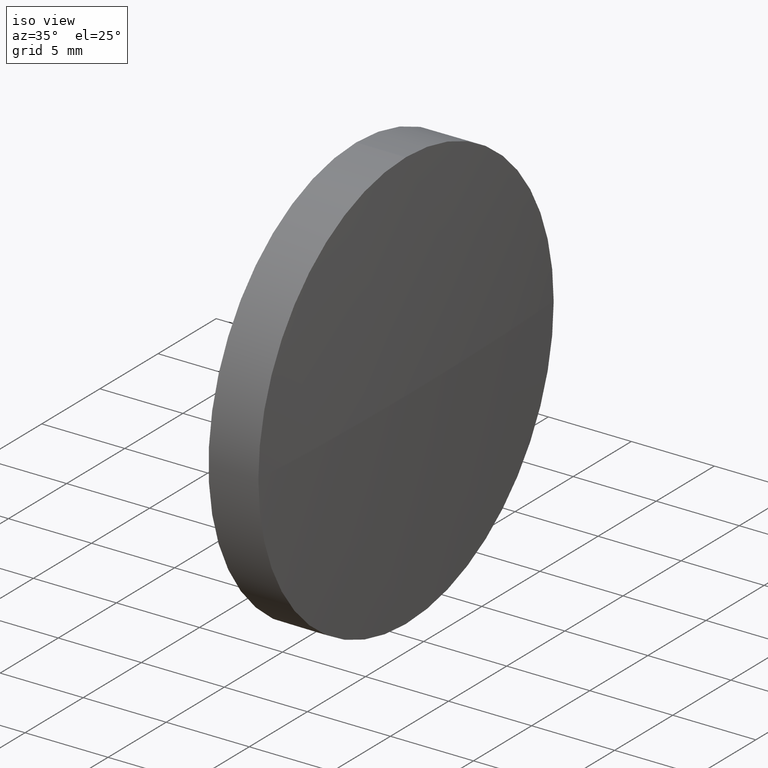
[diagram: clean part render]
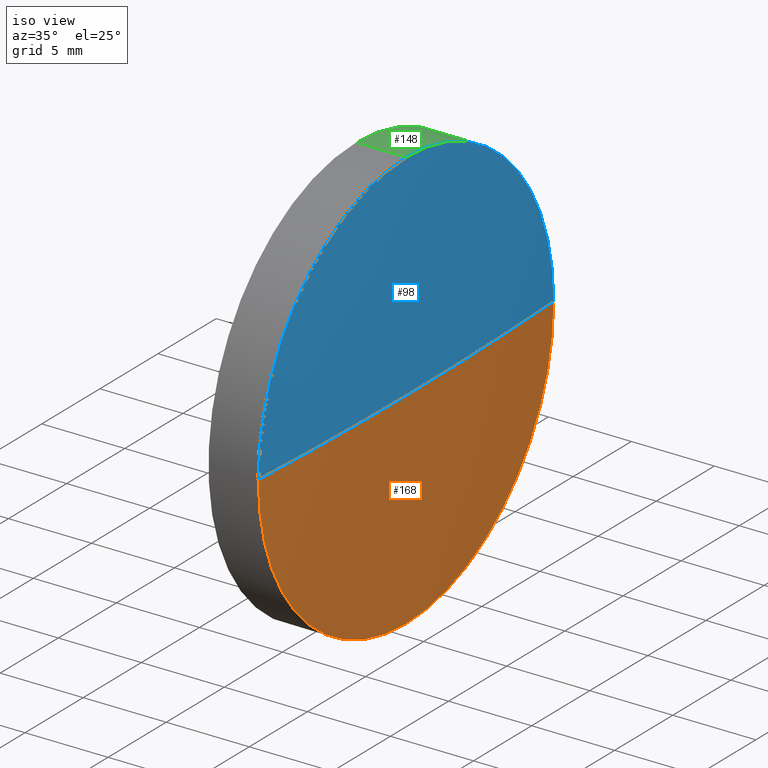
[diagram: same view with three faces highlighted in distinct colors, each labeled with its STEP entity id]
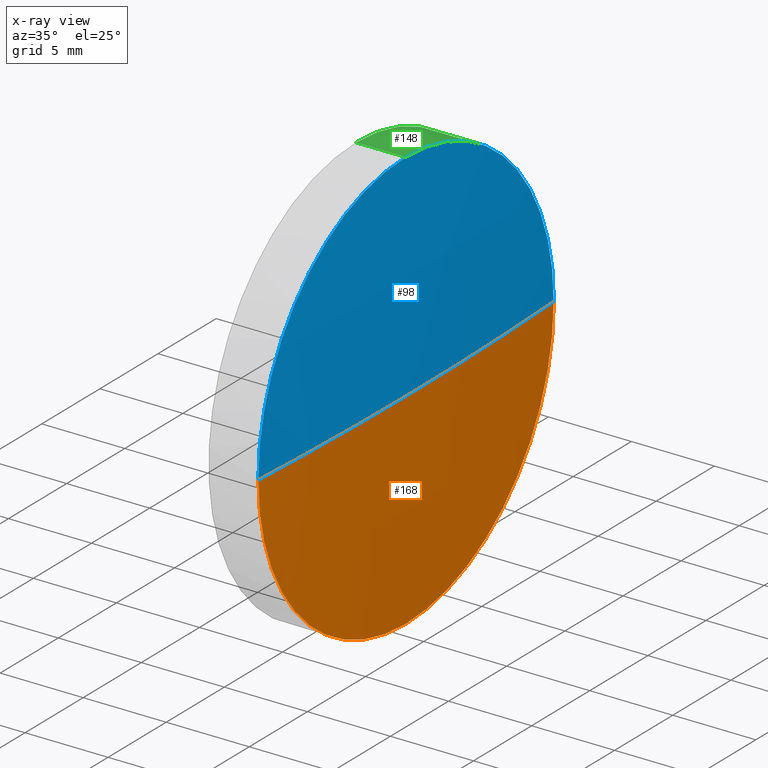
[diagram: x-ray of the same camera — body ghosted, the three highlighted faces saturated]
A machine part, iso view with three faces highlighted in distinct colors.
The next image is the same camera in x-ray (body ghosted, the three faces saturated) — at least one of them is partly hidden behind the body in this view.
Their STEP definitions:

[orange] entity #168 — the highlighted spherical surface has radius 229.5 mm.
#3 = CARTESIAN_POINT ( 'NONE',  ( 118.7739426674340100, 65.23355492641219700, 0.0000000000000000000 ) ) ;
#5 = DIRECTION ( 'NONE',  ( -1.000000000000000000, -0.0000000000000000000, -0.0000000000000000000 ) ) ;
#6 = VERTEX_POINT ( 'NONE', #71 ) ;
#7 = AXIS2_PLACEMENT_3D ( 'NONE', #174, #162, #31 ) ;
#8 = EDGE_CURVE ( 'NONE', #111, #83, #105, .T. ) ;
#10 = FACE_OUTER_BOUND ( 'NONE', #96, .T. ) ;
#14 = DIRECTION ( 'NONE',  ( 0.0000000000000000000, 0.0000000000000000000, 1.000000000000000000 ) ) ;
#18 = CIRCLE ( 'NONE', #7, 229.5000000000000000 ) ;
#31 = DIRECTION ( 'NONE',  ( 0.0000000000000000000, -1.000000000000000000, -1.224646799147353200E-016 ) ) ;
#37 = AXIS2_PLACEMENT_3D ( 'NONE', #172, #128, #14 ) ;
#40 = AXIS2_PLACEMENT_3D ( 'NONE', #51, #175, #48 ) ;
#41 = CIRCLE ( 'NONE', #79, 12.70000000000000300 ) ;
#44 = CARTESIAN_POINT ( 'NONE',  ( 118.7739426674340300, 77.93355492641221400, 1.555301434917110000E-015 ) ) ;
#48 = DIRECTION ( 'NONE',  ( -1.000000000000000000, 0.0000000000000000000, 0.0000000000000000000 ) ) ;
#50 = VERTEX_POINT ( 'NONE', #44 ) ;
#51 = CARTESIAN_POINT ( 'NONE',  ( -110.3743935691618700, 65.23355492641245200, 0.0000000000000000000 ) ) ;
#52 = SPHERICAL_SURFACE ( 'NONE', #95, 229.5000000000000000 ) ;
#71 = CARTESIAN_POINT ( 'NONE',  ( 119.1256064308381300, 65.23355492641243800, 0.0000000000000000000 ) ) ;
#75 = DIRECTION ( 'NONE',  ( 0.0000000000000000000, 0.0000000000000000000, 1.000000000000000000 ) ) ;
#77 = DIRECTION ( 'NONE',  ( 0.0000000000000000000, -1.000000000000000000, 0.0000000000000000000 ) ) ;
#78 = DIRECTION ( 'NONE',  ( 0.0000000000000000000, 0.0000000000000000000, 1.000000000000000000 ) ) ;
#79 = AXIS2_PLACEMENT_3D ( 'NONE', #3, #5, #78 ) ;
#83 = VERTEX_POINT ( 'NONE', #117 ) ;
#95 = AXIS2_PLACEMENT_3D ( 'NONE', #143, #75, #77 ) ;
#96 = EDGE_LOOP ( 'NONE', ( #109, #123, #152, #127 ) ) ;
#100 = EDGE_CURVE ( 'NONE', #50, #111, #41, .T. ) ;
#105 = CIRCLE ( 'NONE', #37, 12.70000000000000300 ) ;
#109 = ORIENTED_EDGE ( 'NONE', *, *, #155, .F. ) ;
#111 = VERTEX_POINT ( 'NONE', #145 ) ;
#112 = EDGE_CURVE ( 'NONE', #6, #83, #140, .T. ) ;
#117 = CARTESIAN_POINT ( 'NONE',  ( 118.7739426674340300, 52.53355492641242800, 0.0000000000000000000 ) ) ;
#123 = ORIENTED_EDGE ( 'NONE', *, *, #112, .T. ) ;
#127 = ORIENTED_EDGE ( 'NONE', *, *, #100, .F. ) ;
#128 = DIRECTION ( 'NONE',  ( -1.000000000000000000, -0.0000000000000000000, -0.0000000000000000000 ) ) ;
#140 = CIRCLE ( 'NONE', #40, 229.5000000000000000 ) ;
#143 = CARTESIAN_POINT ( 'NONE',  ( -110.3743935691618700, 65.23355492641245200, 0.0000000000000000000 ) ) ;
#145 = CARTESIAN_POINT ( 'NONE',  ( 118.7739426674340100, 65.23355492641219700, -12.70000000000000300 ) ) ;
#152 = ORIENTED_EDGE ( 'NONE', *, *, #8, .F. ) ;
#155 = EDGE_CURVE ( 'NONE', #6, #50, #18, .T. ) ;
#162 = DIRECTION ( 'NONE',  ( 0.0000000000000000000, -1.224646799147353200E-016, 1.000000000000000000 ) ) ;
#168 = ADVANCED_FACE ( 'NONE', ( #10 ), #52, .T. ) ;
#172 = CARTESIAN_POINT ( 'NONE',  ( 118.7739426674340100, 65.23355492641219700, 0.0000000000000000000 ) ) ;
#174 = CARTESIAN_POINT ( 'NONE',  ( -110.3743935691618700, 65.23355492641245200, 0.0000000000000000000 ) ) ;
#175 = DIRECTION ( 'NONE',  ( 0.0000000000000000000, 0.0000000000000000000, -1.000000000000000000 ) ) ;

[blue] entity #98 — the highlighted spherical surface has radius 229.5 mm.
#1 = ORIENTED_EDGE ( 'NONE', *, *, #155, .T. ) ;
#2 = DIRECTION ( 'NONE',  ( 0.0000000000000000000, -1.000000000000000000, 0.0000000000000000000 ) ) ;
#4 = CIRCLE ( 'NONE', #90, 12.70000000000000300 ) ;
#6 = VERTEX_POINT ( 'NONE', #71 ) ;
#7 = AXIS2_PLACEMENT_3D ( 'NONE', #174, #162, #31 ) ;
#15 = CARTESIAN_POINT ( 'NONE',  ( -110.3743935691618700, 65.23355492641245200, 0.0000000000000000000 ) ) ;
#18 = CIRCLE ( 'NONE', #7, 229.5000000000000000 ) ;
#22 = DIRECTION ( 'NONE',  ( -1.000000000000000000, -0.0000000000000000000, -0.0000000000000000000 ) ) ;
#23 = AXIS2_PLACEMENT_3D ( 'NONE', #30, #22, #130 ) ;
#27 = ORIENTED_EDGE ( 'NONE', *, *, #112, .F. ) ;
#30 = CARTESIAN_POINT ( 'NONE',  ( 118.7739426674340100, 65.23355492641219700, 0.0000000000000000000 ) ) ;
#31 = DIRECTION ( 'NONE',  ( 0.0000000000000000000, -1.000000000000000000, -1.224646799147353200E-016 ) ) ;
#34 = EDGE_LOOP ( 'NONE', ( #27, #1, #132, #102 ) ) ;
#40 = AXIS2_PLACEMENT_3D ( 'NONE', #51, #175, #48 ) ;
#44 = CARTESIAN_POINT ( 'NONE',  ( 118.7739426674340300, 77.93355492641221400, 1.555301434917110000E-015 ) ) ;
#46 = CARTESIAN_POINT ( 'NONE',  ( 118.7739426674340100, 65.23355492641219700, 12.70000000000000300 ) ) ;
#48 = DIRECTION ( 'NONE',  ( -1.000000000000000000, 0.0000000000000000000, 0.0000000000000000000 ) ) ;
#50 = VERTEX_POINT ( 'NONE', #44 ) ;
#51 = CARTESIAN_POINT ( 'NONE',  ( -110.3743935691618700, 65.23355492641245200, 0.0000000000000000000 ) ) ;
#71 = CARTESIAN_POINT ( 'NONE',  ( 119.1256064308381300, 65.23355492641243800, 0.0000000000000000000 ) ) ;
#74 = DIRECTION ( 'NONE',  ( 0.0000000000000000000, 0.0000000000000000000, 1.000000000000000000 ) ) ;
#83 = VERTEX_POINT ( 'NONE', #117 ) ;
#90 = AXIS2_PLACEMENT_3D ( 'NONE', #108, #176, #97 ) ;
#97 = DIRECTION ( 'NONE',  ( 0.0000000000000000000, 0.0000000000000000000, 1.000000000000000000 ) ) ;
#98 = ADVANCED_FACE ( 'NONE', ( #180 ), #156, .T. ) ;
#102 = ORIENTED_EDGE ( 'NONE', *, *, #107, .F. ) ;
#103 = EDGE_CURVE ( 'NONE', #141, #50, #4, .T. ) ;
#107 = EDGE_CURVE ( 'NONE', #83, #141, #151, .T. ) ;
#108 = CARTESIAN_POINT ( 'NONE',  ( 118.7739426674340100, 65.23355492641219700, 0.0000000000000000000 ) ) ;
#112 = EDGE_CURVE ( 'NONE', #6, #83, #140, .T. ) ;
#115 = AXIS2_PLACEMENT_3D ( 'NONE', #15, #74, #2 ) ;
#117 = CARTESIAN_POINT ( 'NONE',  ( 118.7739426674340300, 52.53355492641242800, 0.0000000000000000000 ) ) ;
#130 = DIRECTION ( 'NONE',  ( 0.0000000000000000000, 0.0000000000000000000, 1.000000000000000000 ) ) ;
#132 = ORIENTED_EDGE ( 'NONE', *, *, #103, .F. ) ;
#140 = CIRCLE ( 'NONE', #40, 229.5000000000000000 ) ;
#141 = VERTEX_POINT ( 'NONE', #46 ) ;
#151 = CIRCLE ( 'NONE', #23, 12.70000000000000300 ) ;
#155 = EDGE_CURVE ( 'NONE', #6, #50, #18, .T. ) ;
#156 = SPHERICAL_SURFACE ( 'NONE', #115, 229.5000000000000000 ) ;
#162 = DIRECTION ( 'NONE',  ( 0.0000000000000000000, -1.224646799147353200E-016, 1.000000000000000000 ) ) ;
#174 = CARTESIAN_POINT ( 'NONE',  ( -110.3743935691618700, 65.23355492641245200, 0.0000000000000000000 ) ) ;
#175 = DIRECTION ( 'NONE',  ( 0.0000000000000000000, 0.0000000000000000000, -1.000000000000000000 ) ) ;
#176 = DIRECTION ( 'NONE',  ( -1.000000000000000000, -0.0000000000000000000, -0.0000000000000000000 ) ) ;
#180 = FACE_OUTER_BOUND ( 'NONE', #34, .T. ) ;

[green] entity #148 — the highlighted cylindrical surface (partial cylindrical patch) has radius 12.7 mm, axis along (-1, -0, -0).
#3 = CARTESIAN_POINT ( 'NONE',  ( 118.7739426674340100, 65.23355492641219700, 0.0000000000000000000 ) ) ;
#4 = CIRCLE ( 'NONE', #90, 12.70000000000000300 ) ;
#5 = DIRECTION ( 'NONE',  ( -1.000000000000000000, -0.0000000000000000000, -0.0000000000000000000 ) ) ;
#11 = LINE ( 'NONE', #178, #101 ) ;
#20 = EDGE_CURVE ( 'NONE', #111, #54, #86, .T. ) ;
#28 = EDGE_CURVE ( 'NONE', #76, #54, #32, .T. ) ;
#29 = CARTESIAN_POINT ( 'NONE',  ( 115.7736064308381300, 65.23355492641219700, 0.0000000000000000000 ) ) ;
#32 = CIRCLE ( 'NONE', #49, 12.70000000000000300 ) ;
#38 = CYLINDRICAL_SURFACE ( 'NONE', #45, 12.70000000000000300 ) ;
#41 = CIRCLE ( 'NONE', #79, 12.70000000000000300 ) ;
#43 = DIRECTION ( 'NONE',  ( -1.000000000000000000, -0.0000000000000000000, -0.0000000000000000000 ) ) ;
#44 = CARTESIAN_POINT ( 'NONE',  ( 118.7739426674340300, 77.93355492641221400, 1.555301434917110000E-015 ) ) ;
#45 = AXIS2_PLACEMENT_3D ( 'NONE', #106, #129, #131 ) ;
#46 = CARTESIAN_POINT ( 'NONE',  ( 118.7739426674340100, 65.23355492641219700, 12.70000000000000300 ) ) ;
#49 = AXIS2_PLACEMENT_3D ( 'NONE', #29, #43, #59 ) ;
#50 = VERTEX_POINT ( 'NONE', #44 ) ;
#54 = VERTEX_POINT ( 'NONE', #73 ) ;
#59 = DIRECTION ( 'NONE',  ( 0.0000000000000000000, 0.0000000000000000000, 1.000000000000000000 ) ) ;
#69 = ORIENTED_EDGE ( 'NONE', *, *, #28, .F. ) ;
#70 = VECTOR ( 'NONE', #139, 1000.000000000000000 ) ;
#73 = CARTESIAN_POINT ( 'NONE',  ( 115.7736064308381300, 65.23355492641219700, -12.70000000000000300 ) ) ;
#76 = VERTEX_POINT ( 'NONE', #94 ) ;
#78 = DIRECTION ( 'NONE',  ( 0.0000000000000000000, 0.0000000000000000000, 1.000000000000000000 ) ) ;
#79 = AXIS2_PLACEMENT_3D ( 'NONE', #3, #5, #78 ) ;
#86 = LINE ( 'NONE', #104, #70 ) ;
#90 = AXIS2_PLACEMENT_3D ( 'NONE', #108, #176, #97 ) ;
#92 = ORIENTED_EDGE ( 'NONE', *, *, #103, .T. ) ;
#93 = ORIENTED_EDGE ( 'NONE', *, *, #20, .T. ) ;
#94 = CARTESIAN_POINT ( 'NONE',  ( 115.7736064308381300, 65.23355492641219700, 12.70000000000000300 ) ) ;
#97 = DIRECTION ( 'NONE',  ( 0.0000000000000000000, 0.0000000000000000000, 1.000000000000000000 ) ) ;
#100 = EDGE_CURVE ( 'NONE', #50, #111, #41, .T. ) ;
#101 = VECTOR ( 'NONE', #144, 1000.000000000000000 ) ;
#103 = EDGE_CURVE ( 'NONE', #141, #50, #4, .T. ) ;
#104 = CARTESIAN_POINT ( 'NONE',  ( 110.1653732284884500, 65.23355492641219700, -12.70000000000000300 ) ) ;
#106 = CARTESIAN_POINT ( 'NONE',  ( 110.1653732284884500, 65.23355492641219700, 0.0000000000000000000 ) ) ;
#108 = CARTESIAN_POINT ( 'NONE',  ( 118.7739426674340100, 65.23355492641219700, 0.0000000000000000000 ) ) ;
#111 = VERTEX_POINT ( 'NONE', #145 ) ;
#129 = DIRECTION ( 'NONE',  ( -1.000000000000000000, -0.0000000000000000000, -0.0000000000000000000 ) ) ;
#131 = DIRECTION ( 'NONE',  ( 0.0000000000000000000, 0.0000000000000000000, 1.000000000000000000 ) ) ;
#137 = EDGE_LOOP ( 'NONE', ( #171, #93, #69, #159, #92 ) ) ;
#139 = DIRECTION ( 'NONE',  ( -1.000000000000000000, -0.0000000000000000000, -0.0000000000000000000 ) ) ;
#141 = VERTEX_POINT ( 'NONE', #46 ) ;
#144 = DIRECTION ( 'NONE',  ( -1.000000000000000000, -0.0000000000000000000, -0.0000000000000000000 ) ) ;
#145 = CARTESIAN_POINT ( 'NONE',  ( 118.7739426674340100, 65.23355492641219700, -12.70000000000000300 ) ) ;
#146 = FACE_OUTER_BOUND ( 'NONE', #137, .T. ) ;
#148 = ADVANCED_FACE ( 'NONE', ( #146 ), #38, .T. ) ;
#159 = ORIENTED_EDGE ( 'NONE', *, *, #183, .F. ) ;
#171 = ORIENTED_EDGE ( 'NONE', *, *, #100, .T. ) ;
#176 = DIRECTION ( 'NONE',  ( -1.000000000000000000, -0.0000000000000000000, -0.0000000000000000000 ) ) ;
#178 = CARTESIAN_POINT ( 'NONE',  ( 110.1653732284884500, 65.23355492641219700, 12.70000000000000300 ) ) ;
#183 = EDGE_CURVE ( 'NONE', #141, #76, #11, .T. ) ;